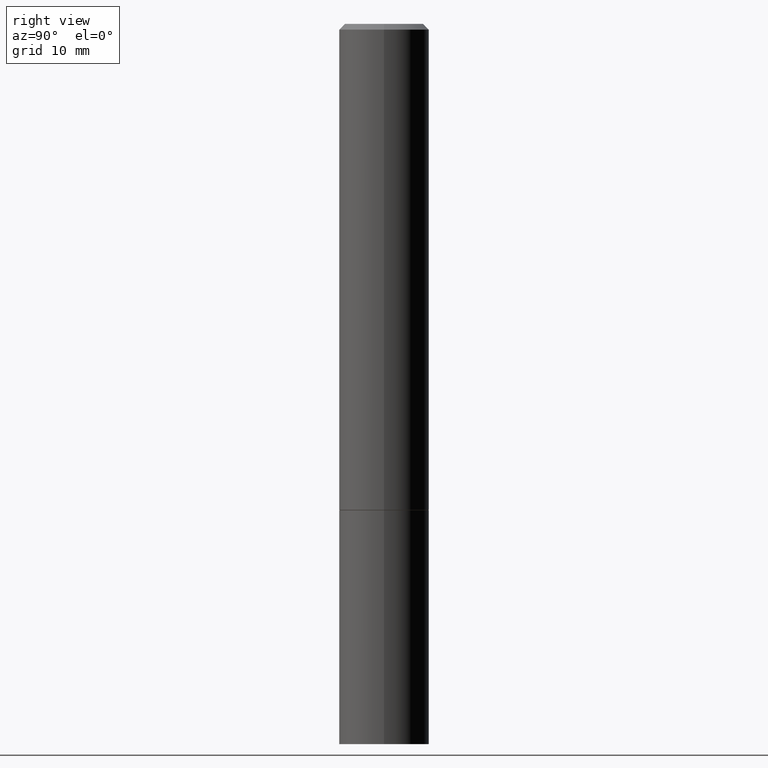
[diagram: clean part render]
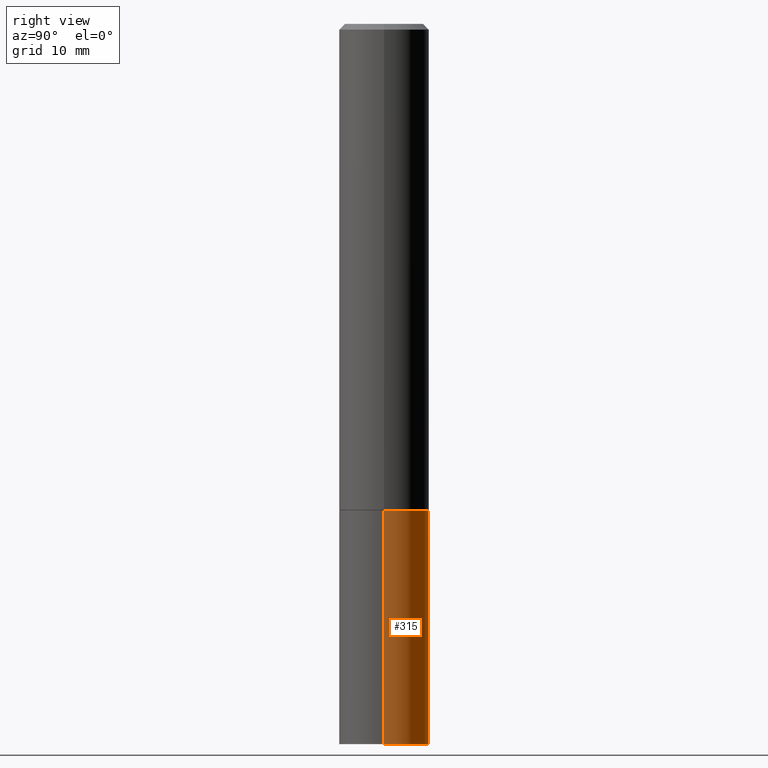
[diagram: same view with one face highlighted and labeled with its STEP entity id]
A machine part, right view. The second image highlights one B-rep face of the part: STEP entity #315.
In plain terms, the highlighted cylindrical surface (partial cylindrical patch) has radius 3.9688 mm, axis along (-0, 0, 1).
Its self-contained STEP definition (entity closure, byte-faithful):
#2 = EDGE_CURVE ( 'NONE', #183, #64, #260, .T. ) ;
#14 = DIRECTION ( 'NONE',  ( 1.000000000000000000, -6.982962677686269077E-15, 0.000000000000000000 ) ) ;
#28 = CYLINDRICAL_SURFACE ( 'NONE', #190, 0.1562500000000000000 ) ;
#34 = ORIENTED_EDGE ( 'NONE', *, *, #46, .F. ) ;
#40 = ORIENTED_EDGE ( 'NONE', *, *, #352, .T. ) ;
#43 = DIRECTION ( 'NONE',  ( 1.000000000000000000, -6.982962677686269077E-15, 0.000000000000000000 ) ) ;
#46 = EDGE_CURVE ( 'NONE', #355, #183, #310, .T. ) ;
#64 = VERTEX_POINT ( 'NONE', #281 ) ;
#68 = DIRECTION ( 'NONE',  ( -2.445468806185136597E-29, 3.491481338843145583E-15, 1.000000000000000000 ) ) ;
#88 = CARTESIAN_POINT ( 'NONE',  ( 0.000000000000000000, 0.000000000000000000, 0.000000000000000000 ) ) ;
#92 = ORIENTED_EDGE ( 'NONE', *, *, #138, .T. ) ;
#94 = DIRECTION ( 'NONE',  ( 1.000000000000000000, -6.982962677686266711E-15, 4.876176775795936353E-29 ) ) ;
#97 = CARTESIAN_POINT ( 'NONE',  ( 6.113672015462842613E-29, -8.728703347107864943E-15, -2.500000000000000000 ) ) ;
#102 = VECTOR ( 'NONE', #330, 39.37007874015748143 ) ;
#127 = CARTESIAN_POINT ( 'NONE',  ( 0.1562500000000000000, -1.091087918388479174E-15, 7.619026212181150377E-30 ) ) ;
#138 = EDGE_CURVE ( 'NONE', #355, #322, #362, .T. ) ;
#145 = CARTESIAN_POINT ( 'NONE',  ( -0.1562500000000000000, 1.110223024625156540E-15, -7.685836078523291160E-30 ) ) ;
#161 = CARTESIAN_POINT ( 'NONE',  ( 0.1562500000000000000, -6.984708418355709513E-15, -1.688000000000000167 ) ) ;
#177 = LINE ( 'NONE', #145, #349 ) ;
#183 = VERTEX_POINT ( 'NONE', #161 ) ;
#190 = AXIS2_PLACEMENT_3D ( 'NONE', #88, #292, #94 ) ;
#196 = AXIS2_PLACEMENT_3D ( 'NONE', #97, #302, #43 ) ;
#206 = CARTESIAN_POINT ( 'NONE',  ( 4.127951344840510809E-29, -5.893620499967230340E-15, -1.688000000000000167 ) ) ;
#208 = CARTESIAN_POINT ( 'NONE',  ( -0.1562500000000000000, -6.200938898912389918E-15, -2.500000000000000000 ) ) ;
#260 = CIRCLE ( 'NONE', #348, 0.1562500000000000000 ) ;
#271 = DIRECTION ( 'NONE',  ( -2.445468806185136877E-29, 3.491481338843145188E-15, 1.000000000000000000 ) ) ;
#281 = CARTESIAN_POINT ( 'NONE',  ( -0.1562500000000000000, -6.200938898912389918E-15, -1.688000000000000167 ) ) ;
#287 = FACE_OUTER_BOUND ( 'NONE', #326, .T. ) ;
#292 = DIRECTION ( 'NONE',  ( -2.445468806185136597E-29, 3.491481338843145583E-15, 1.000000000000000000 ) ) ;
#293 = ORIENTED_EDGE ( 'NONE', *, *, #2, .F. ) ;
#302 = DIRECTION ( 'NONE',  ( -2.445468806185136597E-29, 3.491481338843145583E-15, 1.000000000000000000 ) ) ;
#310 = LINE ( 'NONE', #127, #102 ) ;
#315 = ADVANCED_FACE ( 'NONE', ( #287 ), #28, .T. ) ;
#322 = VERTEX_POINT ( 'NONE', #208 ) ;
#326 = EDGE_LOOP ( 'NONE', ( #92, #40, #293, #34 ) ) ;
#330 = DIRECTION ( 'NONE',  ( -2.445468806185136877E-29, 3.491481338843145188E-15, 1.000000000000000000 ) ) ;
#348 = AXIS2_PLACEMENT_3D ( 'NONE', #206, #68, #14 ) ;
#349 = VECTOR ( 'NONE', #271, 39.37007874015748143 ) ;
#352 = EDGE_CURVE ( 'NONE', #322, #64, #177, .T. ) ;
#354 = CARTESIAN_POINT ( 'NONE',  ( 0.1562500000000000000, -9.819791265496344905E-15, -2.500000000000000000 ) ) ;
#355 = VERTEX_POINT ( 'NONE', #354 ) ;
#362 = CIRCLE ( 'NONE', #196, 0.1562500000000000000 ) ;